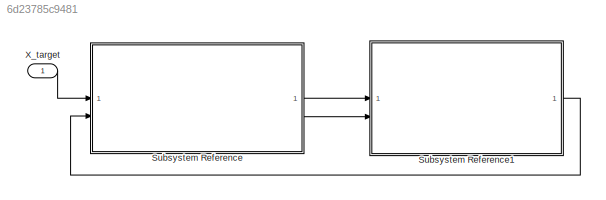
MODEL slx_6d23785c9481
KIND model
CONFIG AbsTol = abs_tol
CONFIG EnableMultiTasking = off
CONFIG FixedStep = dt_sim
CONFIG MaxStep = auto
CONFIG MinStep = auto
CONFIG RelTol = rel_tol
CONFIG SampleTimeConstraint = Unconstrained
CONFIG SolverName = FixedStepAuto
CONFIG StartTime = 0.0
CONFIG StopTime = tspan
BLOCK [SubSystem] Subsystem Reference
  ReferencedSubsystem = pid_controller_tuning_ideal
BLOCK [SubSystem] Subsystem Reference1
  ReferencedSubsystem = plant_pid_tuning_ideal
BLOCK [Inport] X_target
LINE Subsystem Reference1:1 -> Subsystem Reference:2
LINE Subsystem Reference:1 -> Subsystem Reference1:1
LINE Subsystem Reference:2 -> Subsystem Reference1:2
LINE X_target:1 -> Subsystem Reference:1
